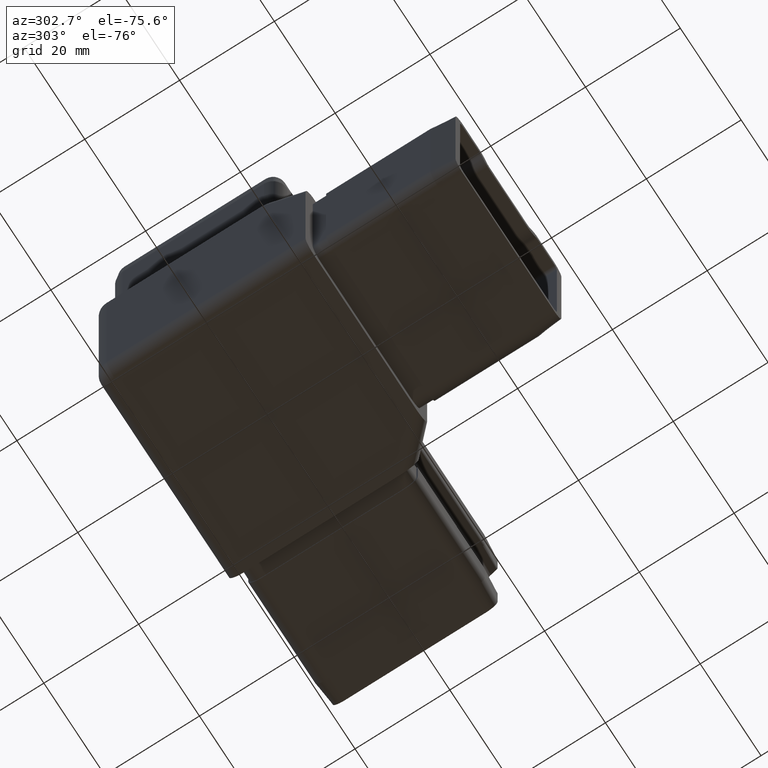
[diagram: clean part render]
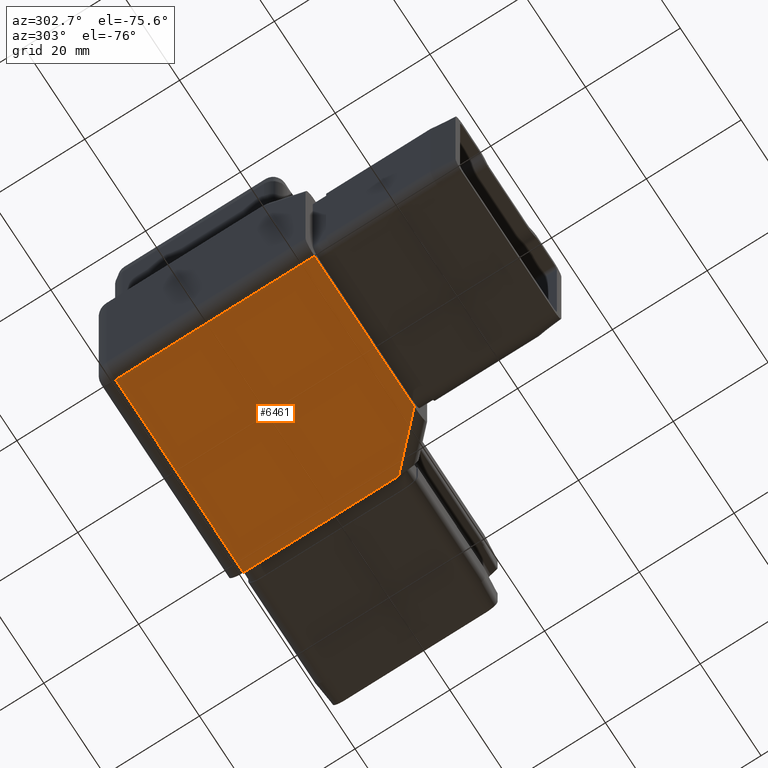
[diagram: same view with one face highlighted and labeled with its STEP entity id]
A machine part, auxiliary view. The second image highlights one B-rep face of the part: STEP entity #6461.
In plain terms, the highlighted planar face has unit normal (-0, 0, 1).
Its self-contained STEP definition (entity closure, byte-faithful):
#94 = EDGE_LOOP ( 'NONE', ( #6863, #15822, #14405, #16874, #15627 ) ) ;
#584 = CARTESIAN_POINT ( 'NONE',  ( 22.50000000000000000, 22.49999999999999600, -22.50000000000000000 ) ) ;
#847 = EDGE_CURVE ( 'NONE', #6020, #5951, #8773, .T. ) ;
#1627 = VECTOR ( 'NONE', #11031, 1000.000000000000000 ) ;
#2101 = PLANE ( 'NONE',  #14527 ) ;
#3255 = CARTESIAN_POINT ( 'NONE',  ( -19.49999999999999600, -3.006854025026465500E-015, -22.50000000000000000 ) ) ;
#3308 = DIRECTION ( 'NONE',  ( -1.541976423090495400E-016, 1.000000000000000000, -0.0000000000000000000 ) ) ;
#3417 = VECTOR ( 'NONE', #7266, 1000.000000000000000 ) ;
#3663 = VECTOR ( 'NONE', #16132, 1000.000000000000200 ) ;
#4455 = EDGE_CURVE ( 'NONE', #11726, #8163, #7177, .T. ) ;
#4602 = CARTESIAN_POINT ( 'NONE',  ( 13.25735931288067000, -22.50000000000000400, -22.50000000000000000 ) ) ;
#5025 = FACE_OUTER_BOUND ( 'NONE', #94, .T. ) ;
#5323 = EDGE_CURVE ( 'NONE', #11726, #5951, #14633, .T. ) ;
#5947 = DIRECTION ( 'NONE',  ( -0.0000000000000000000, 0.0000000000000000000, 1.000000000000000000 ) ) ;
#5951 = VERTEX_POINT ( 'NONE', #10383 ) ;
#6020 = VERTEX_POINT ( 'NONE', #13041 ) ;
#6461 = ADVANCED_FACE ( 'NONE', ( #5025 ), #2101, .F. ) ;
#6830 = EDGE_CURVE ( 'NONE', #7164, #8163, #16413, .T. ) ;
#6837 = CARTESIAN_POINT ( 'NONE',  ( 15.37867965644033500, -20.37867965644036200, -22.50000000000000000 ) ) ;
#6863 = ORIENTED_EDGE ( 'NONE', *, *, #5323, .F. ) ;
#7164 = VERTEX_POINT ( 'NONE', #7351 ) ;
#7177 = LINE ( 'NONE', #6837, #3663 ) ;
#7266 = DIRECTION ( 'NONE',  ( -1.541976423090495400E-016, 1.000000000000000000, -0.0000000000000000000 ) ) ;
#7351 = CARTESIAN_POINT ( 'NONE',  ( -19.49999999999999300, -22.50000000000000400, -22.50000000000000000 ) ) ;
#8023 = CARTESIAN_POINT ( 'NONE',  ( 22.50000000000000700, -13.25735931288071400, -22.50000000000000000 ) ) ;
#8163 = VERTEX_POINT ( 'NONE', #4602 ) ;
#8355 = CARTESIAN_POINT ( 'NONE',  ( -22.49999999999999300, -22.50000000000000400, -22.50000000000000000 ) ) ;
#8773 = LINE ( 'NONE', #12367, #16691 ) ;
#9485 = LINE ( 'NONE', #3255, #13063 ) ;
#10383 = CARTESIAN_POINT ( 'NONE',  ( 22.50000000000000000, 19.49999999999999600, -22.50000000000000000 ) ) ;
#10853 = EDGE_CURVE ( 'NONE', #7164, #6020, #9485, .T. ) ;
#11031 = DIRECTION ( 'NONE',  ( 1.000000000000000000, 0.0000000000000000000, 0.0000000000000000000 ) ) ;
#11726 = VERTEX_POINT ( 'NONE', #8023 ) ;
#12367 = CARTESIAN_POINT ( 'NONE',  ( 0.0000000000000000000, 19.49999999999999600, -22.50000000000000000 ) ) ;
#13041 = CARTESIAN_POINT ( 'NONE',  ( -19.50000000000000000, 19.49999999999999600, -22.50000000000000000 ) ) ;
#13063 = VECTOR ( 'NONE', #3308, 1000.000000000000000 ) ;
#13855 = CARTESIAN_POINT ( 'NONE',  ( 0.0000000000000000000, 0.0000000000000000000, -22.50000000000000000 ) ) ;
#14405 = ORIENTED_EDGE ( 'NONE', *, *, #6830, .F. ) ;
#14527 = AXIS2_PLACEMENT_3D ( 'NONE', #13855, #5947, #16686 ) ;
#14633 = LINE ( 'NONE', #584, #3417 ) ;
#15627 = ORIENTED_EDGE ( 'NONE', *, *, #847, .T. ) ;
#15822 = ORIENTED_EDGE ( 'NONE', *, *, #4455, .T. ) ;
#16132 = DIRECTION ( 'NONE',  ( -0.7071067811865494600, -0.7071067811865455700, -0.0000000000000000000 ) ) ;
#16413 = LINE ( 'NONE', #8355, #1627 ) ;
#16686 = DIRECTION ( 'NONE',  ( 1.000000000000000000, 0.0000000000000000000, 0.0000000000000000000 ) ) ;
#16691 = VECTOR ( 'NONE', #16717, 1000.000000000000000 ) ;
#16717 = DIRECTION ( 'NONE',  ( 1.000000000000000000, -0.0000000000000000000, 0.0000000000000000000 ) ) ;
#16874 = ORIENTED_EDGE ( 'NONE', *, *, #10853, .T. ) ;